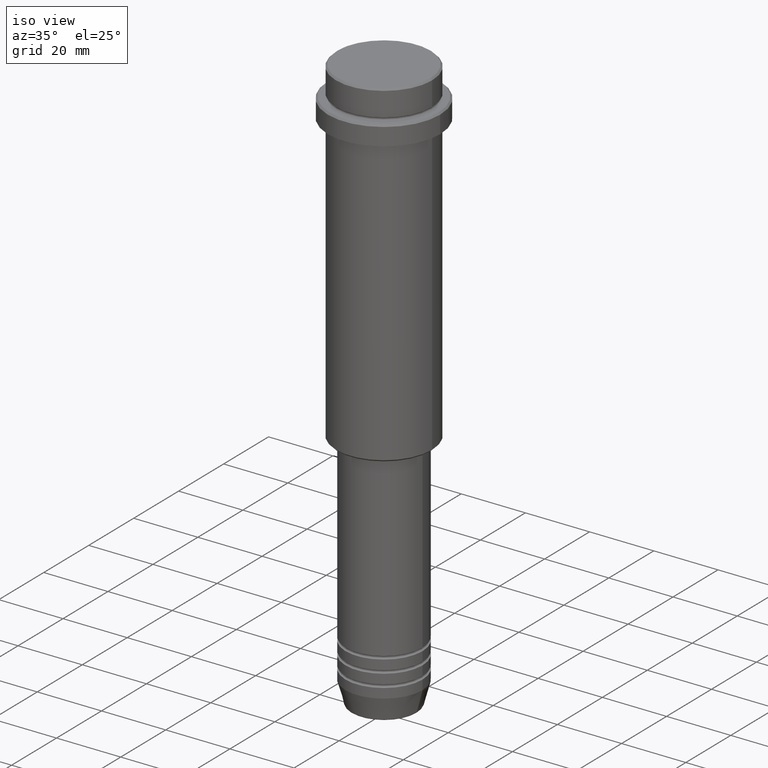
[diagram: clean part render]
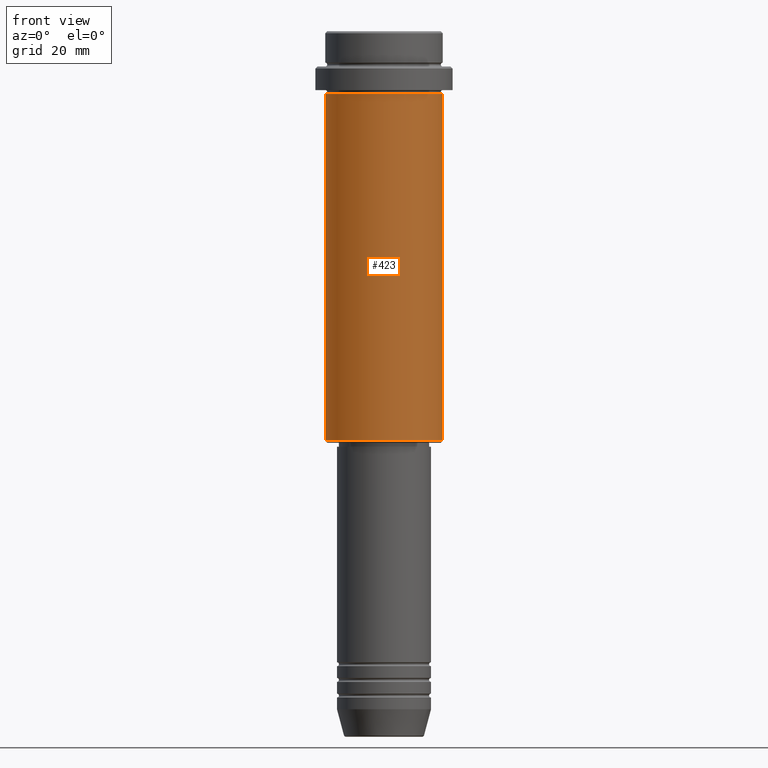
[diagram: tour spotlight — one face highlighted and labeled with its STEP entity id]
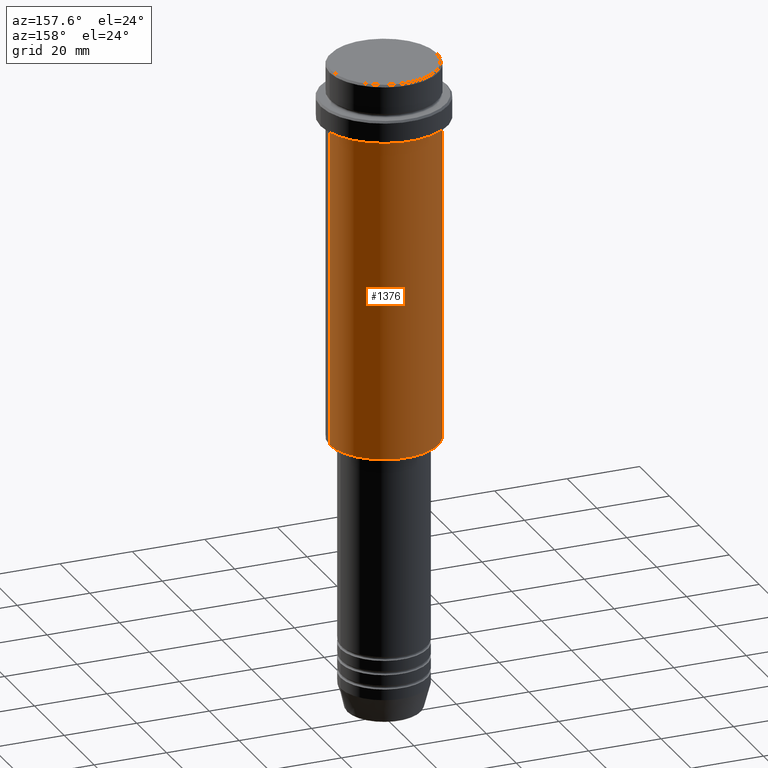
[diagram: tour spotlight — one face highlighted and labeled with its STEP entity id]
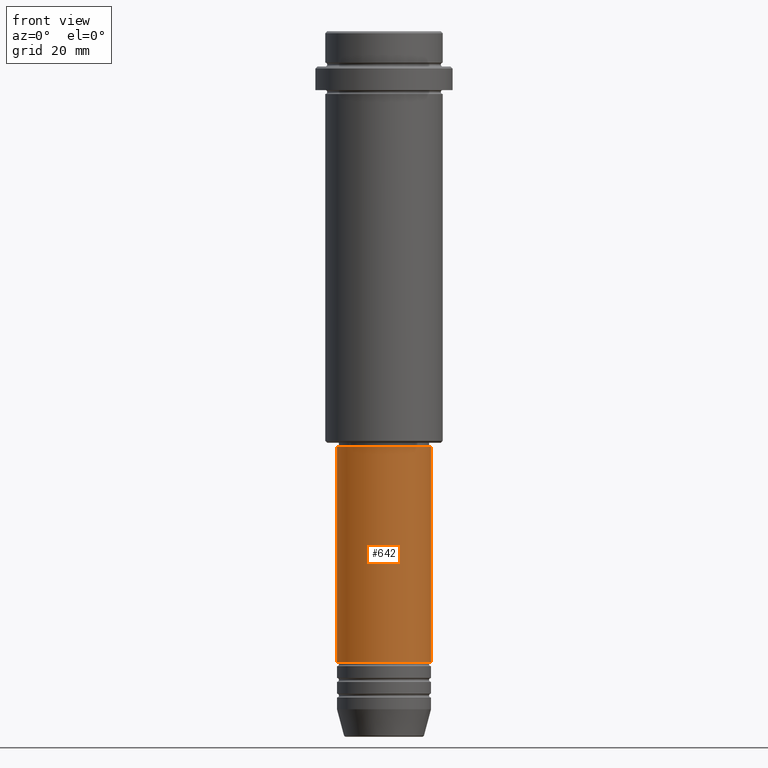
[diagram: tour spotlight — one face highlighted and labeled with its STEP entity id]
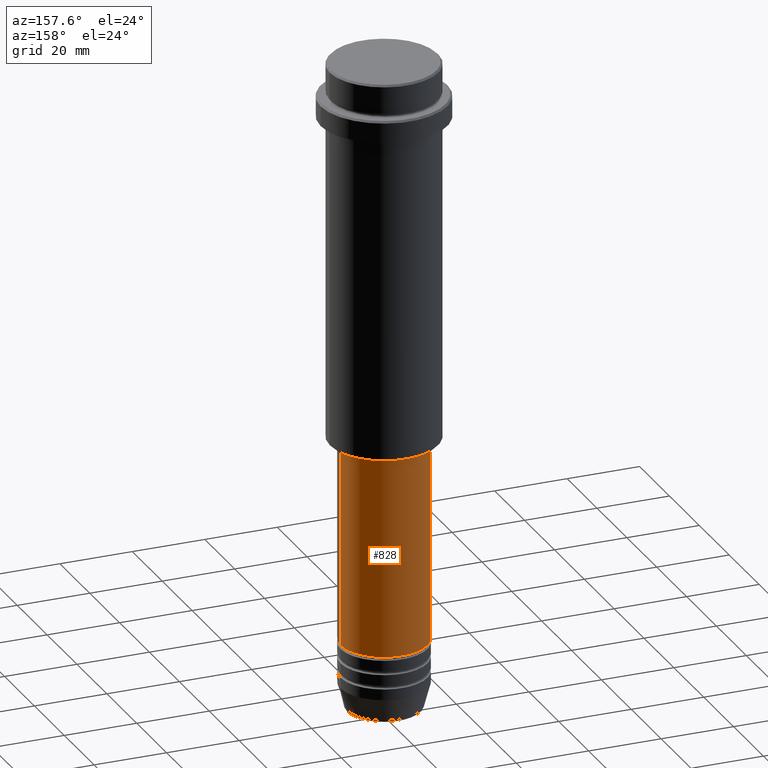
[diagram: tour spotlight — one face highlighted and labeled with its STEP entity id]
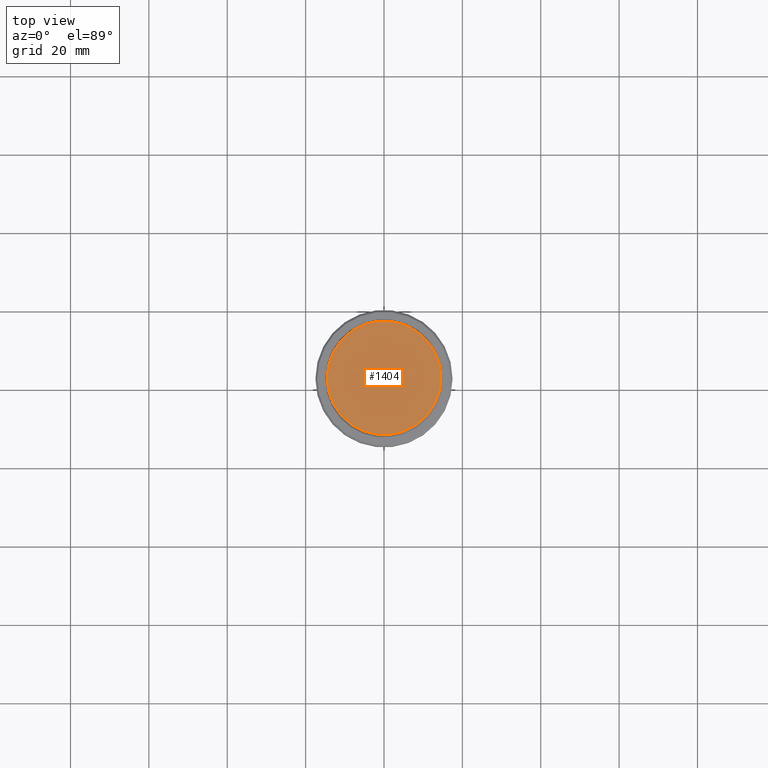
[diagram: tour spotlight — one face highlighted and labeled with its STEP entity id]
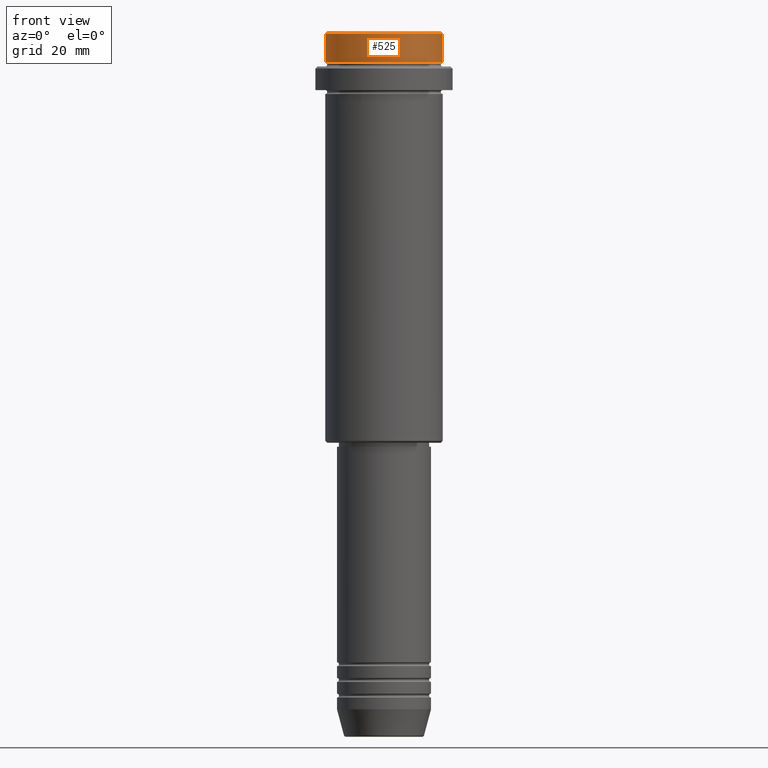
[diagram: tour spotlight — one face highlighted and labeled with its STEP entity id]
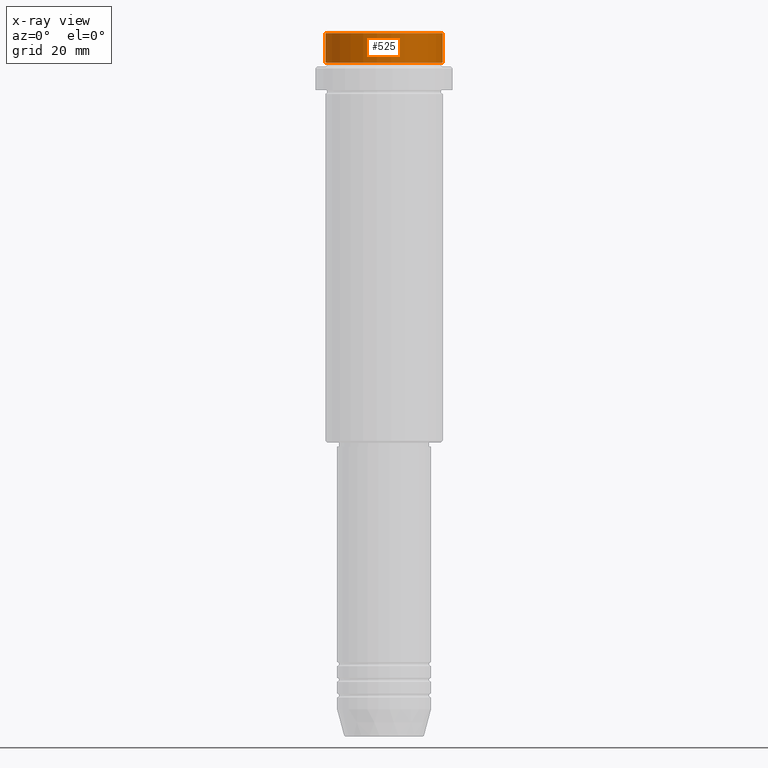
[diagram: x-ray of the same camera — body ghosted, this tour face saturated]
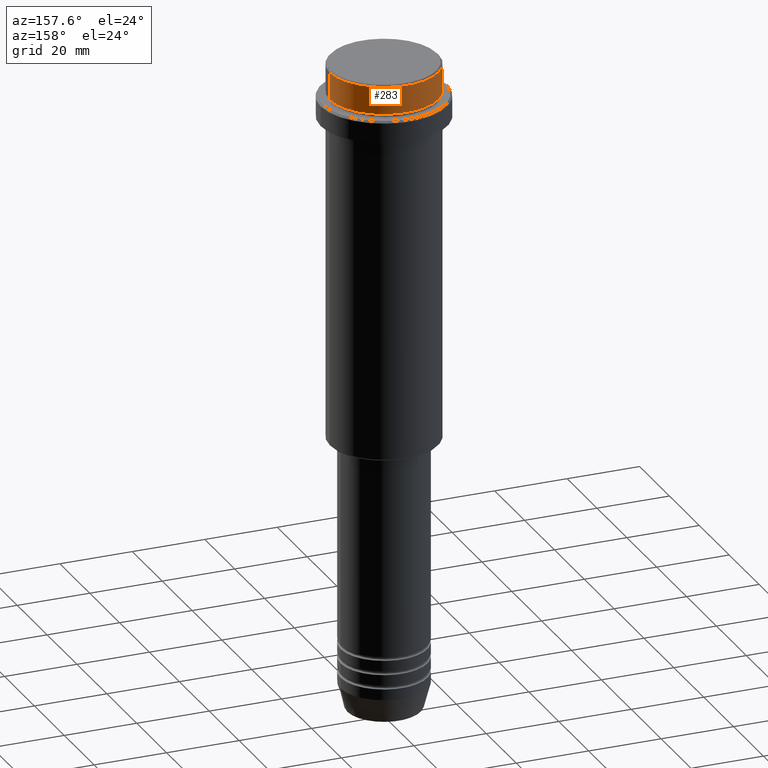
[diagram: tour spotlight — one face highlighted and labeled with its STEP entity id]
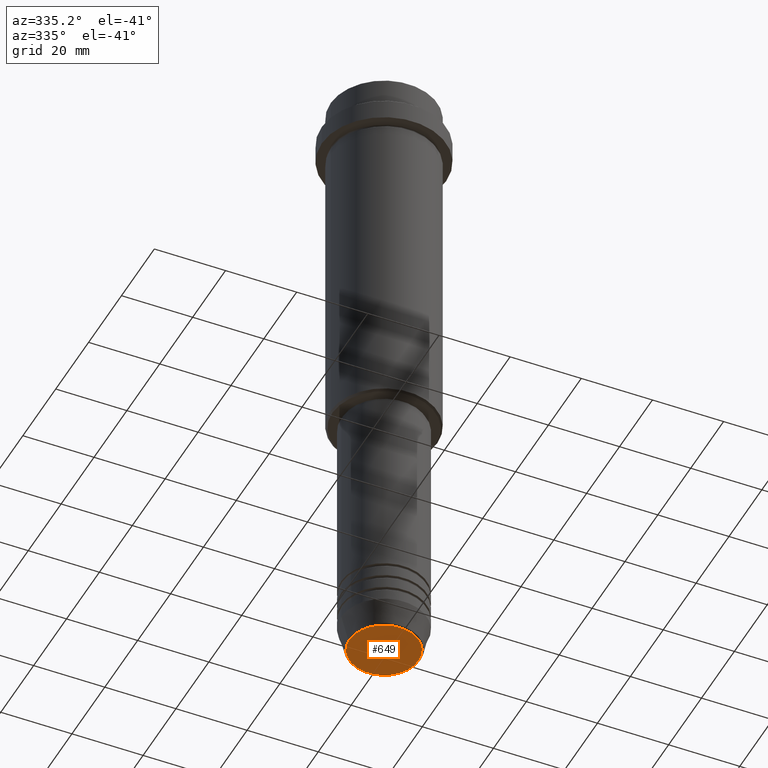
[diagram: tour spotlight — one face highlighted and labeled with its STEP entity id]
A machine part: a face-by-face anatomy tour. The part has 52 B-rep faces; the first image is the clean iso view, then the 8 largest visible faces are spotlighted one at a time (largest first), each with its STEP entity span.

Face 1 — front view, entity #423. In plain terms, the highlighted cylindrical surface (partial cylindrical patch) has radius 15 mm, axis along (-0, -0, 1).
Definition (entity closure, byte-faithful):
#39 = AXIS2_PLACEMENT_3D ( 'NONE', #697, #568, #374 ) ;
#61 = DIRECTION ( 'NONE',  ( -0.000000000000000000, -0.000000000000000000, 1.000000000000000000 ) ) ;
#124 = EDGE_LOOP ( 'NONE', ( #727, #1066, #757, #808 ) ) ;
#198 = LINE ( 'NONE', #397, #451 ) ;
#201 = EDGE_CURVE ( 'NONE', #506, #1403, #1411, .T. ) ;
#289 = VERTEX_POINT ( 'NONE', #1356 ) ;
#374 = DIRECTION ( 'NONE',  ( 1.000000000000000000, 0.000000000000000000, 0.000000000000000000 ) ) ;
#395 = EDGE_CURVE ( 'NONE', #289, #420, #448, .T. ) ;
#397 = CARTESIAN_POINT ( 'NONE',  ( 15.00000000000000000, 0.000000000000000000, 0.000000000000000000 ) ) ;
#420 = VERTEX_POINT ( 'NONE', #987 ) ;
#423 = ADVANCED_FACE ( 'NONE', ( #1274 ), #1046, .T. ) ;
#448 = CIRCLE ( 'NONE', #1366, 15.00000000000000178 ) ;
#451 = VECTOR ( 'NONE', #500, 1000.000000000000000 ) ;
#488 = CARTESIAN_POINT ( 'NONE',  ( -15.00000000000000000, 1.836970198721029589E-15, -104.4999999999999858 ) ) ;
#500 = DIRECTION ( 'NONE',  ( -0.000000000000000000, -0.000000000000000000, 1.000000000000000000 ) ) ;
#506 = VERTEX_POINT ( 'NONE', #488 ) ;
#568 = DIRECTION ( 'NONE',  ( -0.000000000000000000, -0.000000000000000000, 1.000000000000000000 ) ) ;
#697 = CARTESIAN_POINT ( 'NONE',  ( 0.000000000000000000, 0.000000000000000000, 0.000000000000000000 ) ) ;
#727 = ORIENTED_EDGE ( 'NONE', *, *, #785, .F. ) ;
#757 = ORIENTED_EDGE ( 'NONE', *, *, #938, .T. ) ;
#759 = AXIS2_PLACEMENT_3D ( 'NONE', #1240, #1214, #787 ) ;
#760 = VECTOR ( 'NONE', #781, 1000.000000000000000 ) ;
#781 = DIRECTION ( 'NONE',  ( -0.000000000000000000, -0.000000000000000000, 1.000000000000000000 ) ) ;
#785 = EDGE_CURVE ( 'NONE', #506, #289, #1007, .T. ) ;
#787 = DIRECTION ( 'NONE',  ( -1.000000000000000000, 0.000000000000000000, 0.000000000000000000 ) ) ;
#808 = ORIENTED_EDGE ( 'NONE', *, *, #395, .F. ) ;
#938 = EDGE_CURVE ( 'NONE', #1403, #420, #198, .T. ) ;
#987 = CARTESIAN_POINT ( 'NONE',  ( 15.00000000000000178, 0.000000000000000000, -16.00000000000000000 ) ) ;
#1007 = LINE ( 'NONE', #1142, #760 ) ;
#1046 = CYLINDRICAL_SURFACE ( 'NONE', #39, 15.00000000000000000 ) ;
#1066 = ORIENTED_EDGE ( 'NONE', *, *, #201, .T. ) ;
#1083 = CARTESIAN_POINT ( 'NONE',  ( 15.00000000000000000, 0.000000000000000000, -104.4999999999999858 ) ) ;
#1142 = CARTESIAN_POINT ( 'NONE',  ( -15.00000000000000000, 1.836970198721029589E-15, 0.000000000000000000 ) ) ;
#1207 = CARTESIAN_POINT ( 'NONE',  ( 0.000000000000000000, 0.000000000000000000, -16.00000000000000000 ) ) ;
#1214 = DIRECTION ( 'NONE',  ( -0.000000000000000000, -0.000000000000000000, 1.000000000000000000 ) ) ;
#1240 = CARTESIAN_POINT ( 'NONE',  ( 0.000000000000000000, 0.000000000000000000, -104.4999999999999858 ) ) ;
#1262 = DIRECTION ( 'NONE',  ( 1.000000000000000000, 0.000000000000000000, 0.000000000000000000 ) ) ;
#1274 = FACE_OUTER_BOUND ( 'NONE', #124, .T. ) ;
#1356 = CARTESIAN_POINT ( 'NONE',  ( -15.00000000000000355, 1.836970198721029983E-15, -16.00000000000000000 ) ) ;
#1366 = AXIS2_PLACEMENT_3D ( 'NONE', #1207, #61, #1262 ) ;
#1403 = VERTEX_POINT ( 'NONE', #1083 ) ;
#1411 = CIRCLE ( 'NONE', #759, 15.00000000000000000 ) ;

Face 2 — auxiliary view, entity #1376. In plain terms, the highlighted cylindrical surface (partial cylindrical patch) has radius 15 mm, axis along (-0, -0, 1).
Definition (entity closure, byte-faithful):
#31 = ORIENTED_EDGE ( 'NONE', *, *, #938, .F. ) ;
#75 = DIRECTION ( 'NONE',  ( 1.000000000000000000, 0.000000000000000000, 0.000000000000000000 ) ) ;
#188 = DIRECTION ( 'NONE',  ( -0.000000000000000000, -0.000000000000000000, 1.000000000000000000 ) ) ;
#198 = LINE ( 'NONE', #397, #451 ) ;
#202 = EDGE_CURVE ( 'NONE', #1403, #506, #281, .T. ) ;
#215 = FACE_OUTER_BOUND ( 'NONE', #717, .T. ) ;
#257 = DIRECTION ( 'NONE',  ( -0.000000000000000000, -0.000000000000000000, 1.000000000000000000 ) ) ;
#281 = CIRCLE ( 'NONE', #468, 15.00000000000000000 ) ;
#289 = VERTEX_POINT ( 'NONE', #1356 ) ;
#310 = AXIS2_PLACEMENT_3D ( 'NONE', #410, #1277, #848 ) ;
#386 = CYLINDRICAL_SURFACE ( 'NONE', #310, 15.00000000000000000 ) ;
#397 = CARTESIAN_POINT ( 'NONE',  ( 15.00000000000000000, 0.000000000000000000, 0.000000000000000000 ) ) ;
#410 = CARTESIAN_POINT ( 'NONE',  ( 0.000000000000000000, 0.000000000000000000, 0.000000000000000000 ) ) ;
#420 = VERTEX_POINT ( 'NONE', #987 ) ;
#451 = VECTOR ( 'NONE', #500, 1000.000000000000000 ) ;
#468 = AXIS2_PLACEMENT_3D ( 'NONE', #1333, #257, #1204 ) ;
#477 = ORIENTED_EDGE ( 'NONE', *, *, #559, .F. ) ;
#488 = CARTESIAN_POINT ( 'NONE',  ( -15.00000000000000000, 1.836970198721029589E-15, -104.4999999999999858 ) ) ;
#500 = DIRECTION ( 'NONE',  ( -0.000000000000000000, -0.000000000000000000, 1.000000000000000000 ) ) ;
#506 = VERTEX_POINT ( 'NONE', #488 ) ;
#559 = EDGE_CURVE ( 'NONE', #420, #289, #590, .T. ) ;
#580 = ORIENTED_EDGE ( 'NONE', *, *, #785, .T. ) ;
#590 = CIRCLE ( 'NONE', #738, 15.00000000000000178 ) ;
#717 = EDGE_LOOP ( 'NONE', ( #1181, #580, #477, #31 ) ) ;
#738 = AXIS2_PLACEMENT_3D ( 'NONE', #1281, #188, #75 ) ;
#760 = VECTOR ( 'NONE', #781, 1000.000000000000000 ) ;
#781 = DIRECTION ( 'NONE',  ( -0.000000000000000000, -0.000000000000000000, 1.000000000000000000 ) ) ;
#785 = EDGE_CURVE ( 'NONE', #506, #289, #1007, .T. ) ;
#848 = DIRECTION ( 'NONE',  ( 1.000000000000000000, 0.000000000000000000, 0.000000000000000000 ) ) ;
#938 = EDGE_CURVE ( 'NONE', #1403, #420, #198, .T. ) ;
#987 = CARTESIAN_POINT ( 'NONE',  ( 15.00000000000000178, 0.000000000000000000, -16.00000000000000000 ) ) ;
#1007 = LINE ( 'NONE', #1142, #760 ) ;
#1083 = CARTESIAN_POINT ( 'NONE',  ( 15.00000000000000000, 0.000000000000000000, -104.4999999999999858 ) ) ;
#1142 = CARTESIAN_POINT ( 'NONE',  ( -15.00000000000000000, 1.836970198721029589E-15, 0.000000000000000000 ) ) ;
#1181 = ORIENTED_EDGE ( 'NONE', *, *, #202, .T. ) ;
#1204 = DIRECTION ( 'NONE',  ( -1.000000000000000000, 0.000000000000000000, 0.000000000000000000 ) ) ;
#1277 = DIRECTION ( 'NONE',  ( -0.000000000000000000, -0.000000000000000000, 1.000000000000000000 ) ) ;
#1281 = CARTESIAN_POINT ( 'NONE',  ( 0.000000000000000000, 0.000000000000000000, -16.00000000000000000 ) ) ;
#1333 = CARTESIAN_POINT ( 'NONE',  ( 0.000000000000000000, 0.000000000000000000, -104.4999999999999858 ) ) ;
#1356 = CARTESIAN_POINT ( 'NONE',  ( -15.00000000000000355, 1.836970198721029983E-15, -16.00000000000000000 ) ) ;
#1376 = ADVANCED_FACE ( 'NONE', ( #215 ), #386, .T. ) ;
#1403 = VERTEX_POINT ( 'NONE', #1083 ) ;

Face 3 — front view, entity #642. In plain terms, the highlighted cylindrical surface (partial cylindrical patch) has radius 12 mm, axis along (-0, -0, 1).
Definition (entity closure, byte-faithful):
#53 = CARTESIAN_POINT ( 'NONE',  ( 11.99999999999999822, 0.000000000000000000, -106.0000000000000142 ) ) ;
#63 = CIRCLE ( 'NONE', #364, 11.99999999999999822 ) ;
#102 = CARTESIAN_POINT ( 'NONE',  ( 0.000000000000000000, 0.000000000000000000, -160.9999999999999147 ) ) ;
#116 = CYLINDRICAL_SURFACE ( 'NONE', #449, 12.00000000000000000 ) ;
#144 = DIRECTION ( 'NONE',  ( -0.000000000000000000, -0.000000000000000000, 1.000000000000000000 ) ) ;
#191 = DIRECTION ( 'NONE',  ( 1.000000000000000000, 0.000000000000000000, 0.000000000000000000 ) ) ;
#200 = CARTESIAN_POINT ( 'NONE',  ( -11.99999999999999822, 1.469576158976823750E-15, -106.0000000000000142 ) ) ;
#219 = CARTESIAN_POINT ( 'NONE',  ( 0.000000000000000000, 0.000000000000000000, 0.000000000000000000 ) ) ;
#238 = EDGE_CURVE ( 'NONE', #772, #1258, #1343, .T. ) ;
#242 = EDGE_LOOP ( 'NONE', ( #692, #1380, #1223, #1250 ) ) ;
#278 = DIRECTION ( 'NONE',  ( -0.000000000000000000, -0.000000000000000000, 1.000000000000000000 ) ) ;
#320 = CARTESIAN_POINT ( 'NONE',  ( -12.00000000000000000, 1.469576158976823947E-15, 0.000000000000000000 ) ) ;
#364 = AXIS2_PLACEMENT_3D ( 'NONE', #1264, #278, #191 ) ;
#449 = AXIS2_PLACEMENT_3D ( 'NONE', #219, #526, #1310 ) ;
#508 = DIRECTION ( 'NONE',  ( 1.000000000000000000, 0.000000000000000000, 0.000000000000000000 ) ) ;
#526 = DIRECTION ( 'NONE',  ( -0.000000000000000000, -0.000000000000000000, 1.000000000000000000 ) ) ;
#594 = VERTEX_POINT ( 'NONE', #200 ) ;
#642 = ADVANCED_FACE ( 'NONE', ( #973 ), #116, .T. ) ;
#648 = DIRECTION ( 'NONE',  ( -0.000000000000000000, -0.000000000000000000, 1.000000000000000000 ) ) ;
#654 = EDGE_CURVE ( 'NONE', #930, #594, #1000, .T. ) ;
#692 = ORIENTED_EDGE ( 'NONE', *, *, #654, .F. ) ;
#772 = VERTEX_POINT ( 'NONE', #1239 ) ;
#930 = VERTEX_POINT ( 'NONE', #937 ) ;
#932 = AXIS2_PLACEMENT_3D ( 'NONE', #102, #1096, #508 ) ;
#937 = CARTESIAN_POINT ( 'NONE',  ( -12.00000000000000000, 1.469576158976823947E-15, -160.9999999999999147 ) ) ;
#973 = FACE_OUTER_BOUND ( 'NONE', #242, .T. ) ;
#1000 = LINE ( 'NONE', #320, #1271 ) ;
#1028 = EDGE_CURVE ( 'NONE', #594, #1258, #63, .T. ) ;
#1096 = DIRECTION ( 'NONE',  ( -0.000000000000000000, -0.000000000000000000, 1.000000000000000000 ) ) ;
#1105 = EDGE_CURVE ( 'NONE', #930, #772, #1185, .T. ) ;
#1185 = CIRCLE ( 'NONE', #932, 12.00000000000000000 ) ;
#1223 = ORIENTED_EDGE ( 'NONE', *, *, #238, .T. ) ;
#1230 = CARTESIAN_POINT ( 'NONE',  ( 12.00000000000000000, 0.000000000000000000, 0.000000000000000000 ) ) ;
#1239 = CARTESIAN_POINT ( 'NONE',  ( 12.00000000000000000, 0.000000000000000000, -160.9999999999999147 ) ) ;
#1250 = ORIENTED_EDGE ( 'NONE', *, *, #1028, .F. ) ;
#1258 = VERTEX_POINT ( 'NONE', #53 ) ;
#1264 = CARTESIAN_POINT ( 'NONE',  ( 0.000000000000000000, 0.000000000000000000, -106.0000000000000142 ) ) ;
#1271 = VECTOR ( 'NONE', #648, 1000.000000000000000 ) ;
#1310 = DIRECTION ( 'NONE',  ( 1.000000000000000000, 0.000000000000000000, 0.000000000000000000 ) ) ;
#1317 = VECTOR ( 'NONE', #144, 1000.000000000000000 ) ;
#1343 = LINE ( 'NONE', #1230, #1317 ) ;
#1380 = ORIENTED_EDGE ( 'NONE', *, *, #1105, .T. ) ;

Face 4 — auxiliary view, entity #828. In plain terms, the highlighted cylindrical surface (partial cylindrical patch) has radius 12 mm, axis along (-0, -0, 1).
Definition (entity closure, byte-faithful):
#36 = ORIENTED_EDGE ( 'NONE', *, *, #238, .F. ) ;
#46 = ORIENTED_EDGE ( 'NONE', *, *, #811, .F. ) ;
#53 = CARTESIAN_POINT ( 'NONE',  ( 11.99999999999999822, 0.000000000000000000, -106.0000000000000142 ) ) ;
#144 = DIRECTION ( 'NONE',  ( -0.000000000000000000, -0.000000000000000000, 1.000000000000000000 ) ) ;
#169 = DIRECTION ( 'NONE',  ( -0.000000000000000000, -0.000000000000000000, 1.000000000000000000 ) ) ;
#200 = CARTESIAN_POINT ( 'NONE',  ( -11.99999999999999822, 1.469576158976823750E-15, -106.0000000000000142 ) ) ;
#238 = EDGE_CURVE ( 'NONE', #772, #1258, #1343, .T. ) ;
#320 = CARTESIAN_POINT ( 'NONE',  ( -12.00000000000000000, 1.469576158976823947E-15, 0.000000000000000000 ) ) ;
#355 = CYLINDRICAL_SURFACE ( 'NONE', #956, 12.00000000000000000 ) ;
#409 = EDGE_CURVE ( 'NONE', #772, #930, #993, .T. ) ;
#491 = ORIENTED_EDGE ( 'NONE', *, *, #654, .T. ) ;
#574 = DIRECTION ( 'NONE',  ( 1.000000000000000000, 0.000000000000000000, 0.000000000000000000 ) ) ;
#585 = ORIENTED_EDGE ( 'NONE', *, *, #409, .T. ) ;
#594 = VERTEX_POINT ( 'NONE', #200 ) ;
#593 = DIRECTION ( 'NONE',  ( 1.000000000000000000, 0.000000000000000000, 0.000000000000000000 ) ) ;
#648 = DIRECTION ( 'NONE',  ( -0.000000000000000000, -0.000000000000000000, 1.000000000000000000 ) ) ;
#654 = EDGE_CURVE ( 'NONE', #930, #594, #1000, .T. ) ;
#668 = EDGE_LOOP ( 'NONE', ( #585, #491, #46, #36 ) ) ;
#675 = CARTESIAN_POINT ( 'NONE',  ( 0.000000000000000000, 0.000000000000000000, 0.000000000000000000 ) ) ;
#772 = VERTEX_POINT ( 'NONE', #1239 ) ;
#780 = AXIS2_PLACEMENT_3D ( 'NONE', #1235, #1125, #1253 ) ;
#811 = EDGE_CURVE ( 'NONE', #1258, #594, #1044, .T. ) ;
#814 = DIRECTION ( 'NONE',  ( -0.000000000000000000, -0.000000000000000000, 1.000000000000000000 ) ) ;
#828 = ADVANCED_FACE ( 'NONE', ( #1136 ), #355, .T. ) ;
#930 = VERTEX_POINT ( 'NONE', #937 ) ;
#937 = CARTESIAN_POINT ( 'NONE',  ( -12.00000000000000000, 1.469576158976823947E-15, -160.9999999999999147 ) ) ;
#953 = AXIS2_PLACEMENT_3D ( 'NONE', #1146, #814, #593 ) ;
#956 = AXIS2_PLACEMENT_3D ( 'NONE', #675, #169, #574 ) ;
#993 = CIRCLE ( 'NONE', #953, 12.00000000000000000 ) ;
#1000 = LINE ( 'NONE', #320, #1271 ) ;
#1044 = CIRCLE ( 'NONE', #780, 11.99999999999999822 ) ;
#1125 = DIRECTION ( 'NONE',  ( -0.000000000000000000, -0.000000000000000000, 1.000000000000000000 ) ) ;
#1136 = FACE_OUTER_BOUND ( 'NONE', #668, .T. ) ;
#1146 = CARTESIAN_POINT ( 'NONE',  ( 0.000000000000000000, 0.000000000000000000, -160.9999999999999147 ) ) ;
#1230 = CARTESIAN_POINT ( 'NONE',  ( 12.00000000000000000, 0.000000000000000000, 0.000000000000000000 ) ) ;
#1235 = CARTESIAN_POINT ( 'NONE',  ( 0.000000000000000000, 0.000000000000000000, -106.0000000000000142 ) ) ;
#1239 = CARTESIAN_POINT ( 'NONE',  ( 12.00000000000000000, 0.000000000000000000, -160.9999999999999147 ) ) ;
#1253 = DIRECTION ( 'NONE',  ( 1.000000000000000000, 0.000000000000000000, 0.000000000000000000 ) ) ;
#1258 = VERTEX_POINT ( 'NONE', #53 ) ;
#1271 = VECTOR ( 'NONE', #648, 1000.000000000000000 ) ;
#1317 = VECTOR ( 'NONE', #144, 1000.000000000000000 ) ;
#1343 = LINE ( 'NONE', #1230, #1317 ) ;

Face 5 — top view, entity #1404. In plain terms, the highlighted planar face has unit normal (0, -0, 1).
Definition (entity closure, byte-faithful):
#175 = DIRECTION ( 'NONE',  ( -0.000000000000000000, -0.000000000000000000, 1.000000000000000000 ) ) ;
#249 = AXIS2_PLACEMENT_3D ( 'NONE', #835, #399, #969 ) ;
#314 = EDGE_LOOP ( 'NONE', ( #871, #1288 ) ) ;
#331 = CIRCLE ( 'NONE', #979, 14.50000000000003908 ) ;
#399 = DIRECTION ( 'NONE',  ( 0.000000000000000000, -0.000000000000000000, 1.000000000000000000 ) ) ;
#490 = VERTEX_POINT ( 'NONE', #1236 ) ;
#628 = EDGE_CURVE ( 'NONE', #490, #700, #1091, .T. ) ;
#700 = VERTEX_POINT ( 'NONE', #1294 ) ;
#732 = CARTESIAN_POINT ( 'NONE',  ( 0.000000000000000000, 0.000000000000000000, 0.000000000000000000 ) ) ;
#736 = AXIS2_PLACEMENT_3D ( 'NONE', #732, #175, #1303 ) ;
#745 = PLANE ( 'NONE',  #249 ) ;
#805 = CARTESIAN_POINT ( 'NONE',  ( 0.000000000000000000, 0.000000000000000000, 0.000000000000000000 ) ) ;
#835 = CARTESIAN_POINT ( 'NONE',  ( 0.000000000000000000, 0.000000000000000000, 0.000000000000000000 ) ) ;
#865 = FACE_OUTER_BOUND ( 'NONE', #314, .T. ) ;
#871 = ORIENTED_EDGE ( 'NONE', *, *, #628, .T. ) ;
#969 = DIRECTION ( 'NONE',  ( 1.000000000000000000, 0.000000000000000000, 0.000000000000000000 ) ) ;
#979 = AXIS2_PLACEMENT_3D ( 'NONE', #805, #1049, #1139 ) ;
#1049 = DIRECTION ( 'NONE',  ( -0.000000000000000000, -0.000000000000000000, 1.000000000000000000 ) ) ;
#1091 = CIRCLE ( 'NONE', #736, 14.50000000000003908 ) ;
#1139 = DIRECTION ( 'NONE',  ( 1.000000000000000000, 0.000000000000000000, 0.000000000000000000 ) ) ;
#1210 = EDGE_CURVE ( 'NONE', #700, #490, #331, .T. ) ;
#1236 = CARTESIAN_POINT ( 'NONE',  ( -14.50000000000003908, 0.000000000000000000, 0.000000000000000000 ) ) ;
#1288 = ORIENTED_EDGE ( 'NONE', *, *, #1210, .T. ) ;
#1294 = CARTESIAN_POINT ( 'NONE',  ( 14.50000000000003908, 1.806354028742348168E-15, 0.000000000000000000 ) ) ;
#1303 = DIRECTION ( 'NONE',  ( 1.000000000000000000, 0.000000000000000000, 0.000000000000000000 ) ) ;
#1404 = ADVANCED_FACE ( 'NONE', ( #865 ), #745, .T. ) ;

Face 6 — front view, entity #525. An x-ray twin of the same camera follows (body ghosted, this face saturated) — the face is partly hidden behind the body. In plain terms, the highlighted cylindrical surface (partial cylindrical patch) has radius 15 mm, axis along (-0, -0, 1).
Definition (entity closure, byte-faithful):
#41 = AXIS2_PLACEMENT_3D ( 'NONE', #718, #68, #968 ) ;
#68 = DIRECTION ( 'NONE',  ( -0.000000000000000000, -0.000000000000000000, 1.000000000000000000 ) ) ;
#85 = CIRCLE ( 'NONE', #830, 15.00000000000000000 ) ;
#136 = CARTESIAN_POINT ( 'NONE',  ( 15.00000000000000000, 0.000000000000000000, -7.999999999999998224 ) ) ;
#206 = CARTESIAN_POINT ( 'NONE',  ( -15.00000000000000000, 1.836970198721029589E-15, -0.4999999999999831246 ) ) ;
#209 = FACE_OUTER_BOUND ( 'NONE', #925, .T. ) ;
#228 = LINE ( 'NONE', #748, #497 ) ;
#248 = VECTOR ( 'NONE', #1361, 1000.000000000000000 ) ;
#277 = ORIENTED_EDGE ( 'NONE', *, *, #750, .T. ) ;
#380 = VERTEX_POINT ( 'NONE', #136 ) ;
#404 = AXIS2_PLACEMENT_3D ( 'NONE', #439, #694, #564 ) ;
#438 = DIRECTION ( 'NONE',  ( 0.000000000000000000, 0.000000000000000000, -1.000000000000000000 ) ) ;
#439 = CARTESIAN_POINT ( 'NONE',  ( 0.000000000000000000, 0.000000000000000000, -7.999999999999998224 ) ) ;
#456 = EDGE_CURVE ( 'NONE', #1024, #989, #85, .T. ) ;
#497 = VECTOR ( 'NONE', #743, 1000.000000000000000 ) ;
#525 = ADVANCED_FACE ( 'NONE', ( #209 ), #703, .T. ) ;
#531 = CARTESIAN_POINT ( 'NONE',  ( -15.00000000000000000, 1.836970198721029589E-15, -7.999999999999998224 ) ) ;
#563 = CARTESIAN_POINT ( 'NONE',  ( 0.000000000000000000, 0.000000000000000000, -0.4999999999999831246 ) ) ;
#564 = DIRECTION ( 'NONE',  ( 1.000000000000000000, 0.000000000000000000, 0.000000000000000000 ) ) ;
#597 = CARTESIAN_POINT ( 'NONE',  ( 15.00000000000000000, 0.000000000000000000, -0.4999999999999831246 ) ) ;
#681 = DIRECTION ( 'NONE',  ( 1.000000000000000000, 0.000000000000000000, 0.000000000000000000 ) ) ;
#694 = DIRECTION ( 'NONE',  ( -0.000000000000000000, -0.000000000000000000, 1.000000000000000000 ) ) ;
#696 = VERTEX_POINT ( 'NONE', #531 ) ;
#703 = CYLINDRICAL_SURFACE ( 'NONE', #41, 15.00000000000000000 ) ;
#718 = CARTESIAN_POINT ( 'NONE',  ( 0.000000000000000000, 0.000000000000000000, 0.000000000000000000 ) ) ;
#720 = ORIENTED_EDGE ( 'NONE', *, *, #456, .T. ) ;
#725 = EDGE_CURVE ( 'NONE', #696, #989, #228, .T. ) ;
#743 = DIRECTION ( 'NONE',  ( -0.000000000000000000, -0.000000000000000000, 1.000000000000000000 ) ) ;
#748 = CARTESIAN_POINT ( 'NONE',  ( -15.00000000000000000, 1.836970198721029589E-15, 0.000000000000000000 ) ) ;
#750 = EDGE_CURVE ( 'NONE', #696, #380, #1043, .T. ) ;
#830 = AXIS2_PLACEMENT_3D ( 'NONE', #563, #438, #681 ) ;
#846 = EDGE_CURVE ( 'NONE', #380, #1024, #1020, .T. ) ;
#888 = ORIENTED_EDGE ( 'NONE', *, *, #846, .T. ) ;
#925 = EDGE_LOOP ( 'NONE', ( #1054, #277, #888, #720 ) ) ;
#968 = DIRECTION ( 'NONE',  ( 1.000000000000000000, 0.000000000000000000, 0.000000000000000000 ) ) ;
#989 = VERTEX_POINT ( 'NONE', #206 ) ;
#1020 = LINE ( 'NONE', #1354, #248 ) ;
#1024 = VERTEX_POINT ( 'NONE', #597 ) ;
#1043 = CIRCLE ( 'NONE', #404, 15.00000000000000000 ) ;
#1054 = ORIENTED_EDGE ( 'NONE', *, *, #725, .F. ) ;
#1354 = CARTESIAN_POINT ( 'NONE',  ( 15.00000000000000000, 0.000000000000000000, 0.000000000000000000 ) ) ;
#1361 = DIRECTION ( 'NONE',  ( -0.000000000000000000, -0.000000000000000000, 1.000000000000000000 ) ) ;

Face 7 — auxiliary view, entity #283. In plain terms, the highlighted cylindrical surface (partial cylindrical patch) has radius 15 mm, axis along (-0, -0, 1).
Definition (entity closure, byte-faithful):
#2 = DIRECTION ( 'NONE',  ( 1.000000000000000000, 0.000000000000000000, 0.000000000000000000 ) ) ;
#35 = CARTESIAN_POINT ( 'NONE',  ( 0.000000000000000000, 0.000000000000000000, 0.000000000000000000 ) ) ;
#136 = CARTESIAN_POINT ( 'NONE',  ( 15.00000000000000000, 0.000000000000000000, -7.999999999999998224 ) ) ;
#154 = EDGE_CURVE ( 'NONE', #380, #696, #1014, .T. ) ;
#204 = AXIS2_PLACEMENT_3D ( 'NONE', #35, #1063, #493 ) ;
#206 = CARTESIAN_POINT ( 'NONE',  ( -15.00000000000000000, 1.836970198721029589E-15, -0.4999999999999831246 ) ) ;
#228 = LINE ( 'NONE', #748, #497 ) ;
#231 = FACE_OUTER_BOUND ( 'NONE', #1031, .T. ) ;
#248 = VECTOR ( 'NONE', #1361, 1000.000000000000000 ) ;
#280 = AXIS2_PLACEMENT_3D ( 'NONE', #1307, #542, #2 ) ;
#283 = ADVANCED_FACE ( 'NONE', ( #231 ), #769, .T. ) ;
#366 = DIRECTION ( 'NONE',  ( 0.000000000000000000, 0.000000000000000000, -1.000000000000000000 ) ) ;
#380 = VERTEX_POINT ( 'NONE', #136 ) ;
#390 = ORIENTED_EDGE ( 'NONE', *, *, #154, .T. ) ;
#493 = DIRECTION ( 'NONE',  ( 1.000000000000000000, 0.000000000000000000, 0.000000000000000000 ) ) ;
#497 = VECTOR ( 'NONE', #743, 1000.000000000000000 ) ;
#531 = CARTESIAN_POINT ( 'NONE',  ( -15.00000000000000000, 1.836970198721029589E-15, -7.999999999999998224 ) ) ;
#542 = DIRECTION ( 'NONE',  ( -0.000000000000000000, -0.000000000000000000, 1.000000000000000000 ) ) ;
#597 = CARTESIAN_POINT ( 'NONE',  ( 15.00000000000000000, 0.000000000000000000, -0.4999999999999831246 ) ) ;
#696 = VERTEX_POINT ( 'NONE', #531 ) ;
#725 = EDGE_CURVE ( 'NONE', #696, #989, #228, .T. ) ;
#739 = ORIENTED_EDGE ( 'NONE', *, *, #846, .F. ) ;
#743 = DIRECTION ( 'NONE',  ( -0.000000000000000000, -0.000000000000000000, 1.000000000000000000 ) ) ;
#748 = CARTESIAN_POINT ( 'NONE',  ( -15.00000000000000000, 1.836970198721029589E-15, 0.000000000000000000 ) ) ;
#769 = CYLINDRICAL_SURFACE ( 'NONE', #204, 15.00000000000000000 ) ;
#810 = ORIENTED_EDGE ( 'NONE', *, *, #725, .T. ) ;
#846 = EDGE_CURVE ( 'NONE', #380, #1024, #1020, .T. ) ;
#951 = CARTESIAN_POINT ( 'NONE',  ( 0.000000000000000000, 0.000000000000000000, -0.4999999999999831246 ) ) ;
#978 = CIRCLE ( 'NONE', #1159, 15.00000000000000000 ) ;
#989 = VERTEX_POINT ( 'NONE', #206 ) ;
#1014 = CIRCLE ( 'NONE', #280, 15.00000000000000000 ) ;
#1020 = LINE ( 'NONE', #1354, #248 ) ;
#1024 = VERTEX_POINT ( 'NONE', #597 ) ;
#1031 = EDGE_LOOP ( 'NONE', ( #390, #810, #1198, #739 ) ) ;
#1035 = EDGE_CURVE ( 'NONE', #989, #1024, #978, .T. ) ;
#1063 = DIRECTION ( 'NONE',  ( -0.000000000000000000, -0.000000000000000000, 1.000000000000000000 ) ) ;
#1159 = AXIS2_PLACEMENT_3D ( 'NONE', #951, #366, #1395 ) ;
#1198 = ORIENTED_EDGE ( 'NONE', *, *, #1035, .T. ) ;
#1307 = CARTESIAN_POINT ( 'NONE',  ( 0.000000000000000000, 0.000000000000000000, -7.999999999999998224 ) ) ;
#1354 = CARTESIAN_POINT ( 'NONE',  ( 15.00000000000000000, 0.000000000000000000, 0.000000000000000000 ) ) ;
#1361 = DIRECTION ( 'NONE',  ( -0.000000000000000000, -0.000000000000000000, 1.000000000000000000 ) ) ;
#1395 = DIRECTION ( 'NONE',  ( 1.000000000000000000, 0.000000000000000000, 0.000000000000000000 ) ) ;

Face 8 — auxiliary view, entity #649. In plain terms, the highlighted planar face has unit normal (0, -0, 1).
Definition (entity closure, byte-faithful):
#123 = VERTEX_POINT ( 'NONE', #1005 ) ;
#303 = AXIS2_PLACEMENT_3D ( 'NONE', #864, #653, #1110 ) ;
#309 = DIRECTION ( 'NONE',  ( 0.000000000000000000, 0.000000000000000000, -1.000000000000000000 ) ) ;
#469 = AXIS2_PLACEMENT_3D ( 'NONE', #1199, #309, #1089 ) ;
#510 = CARTESIAN_POINT ( 'NONE',  ( -9.740692158992667160, 1.222463696683475393E-15, -180.0000000000000000 ) ) ;
#595 = CIRCLE ( 'NONE', #1415, 9.740692158992667160 ) ;
#649 = ADVANCED_FACE ( 'NONE', ( #991 ), #870, .F. ) ;
#653 = DIRECTION ( 'NONE',  ( 0.000000000000000000, -0.000000000000000000, 1.000000000000000000 ) ) ;
#657 = ORIENTED_EDGE ( 'NONE', *, *, #721, .T. ) ;
#698 = DIRECTION ( 'NONE',  ( 1.000000000000000000, 0.000000000000000000, 0.000000000000000000 ) ) ;
#721 = EDGE_CURVE ( 'NONE', #1388, #123, #1132, .T. ) ;
#795 = ORIENTED_EDGE ( 'NONE', *, *, #1213, .T. ) ;
#864 = CARTESIAN_POINT ( 'NONE',  ( 0.000000000000000000, 0.000000000000000000, -180.0000000000000000 ) ) ;
#870 = PLANE ( 'NONE',  #303 ) ;
#877 = EDGE_LOOP ( 'NONE', ( #795, #657 ) ) ;
#924 = DIRECTION ( 'NONE',  ( 0.000000000000000000, 0.000000000000000000, -1.000000000000000000 ) ) ;
#991 = FACE_OUTER_BOUND ( 'NONE', #877, .T. ) ;
#1005 = CARTESIAN_POINT ( 'NONE',  ( 9.740692158992667160, 0.000000000000000000, -180.0000000000000000 ) ) ;
#1089 = DIRECTION ( 'NONE',  ( 1.000000000000000000, 0.000000000000000000, 0.000000000000000000 ) ) ;
#1110 = DIRECTION ( 'NONE',  ( 1.000000000000000000, 0.000000000000000000, 0.000000000000000000 ) ) ;
#1132 = CIRCLE ( 'NONE', #469, 9.740692158992667160 ) ;
#1151 = CARTESIAN_POINT ( 'NONE',  ( 0.000000000000000000, 0.000000000000000000, -180.0000000000000000 ) ) ;
#1199 = CARTESIAN_POINT ( 'NONE',  ( 0.000000000000000000, 0.000000000000000000, -180.0000000000000000 ) ) ;
#1213 = EDGE_CURVE ( 'NONE', #123, #1388, #595, .T. ) ;
#1388 = VERTEX_POINT ( 'NONE', #510 ) ;
#1415 = AXIS2_PLACEMENT_3D ( 'NONE', #1151, #924, #698 ) ;